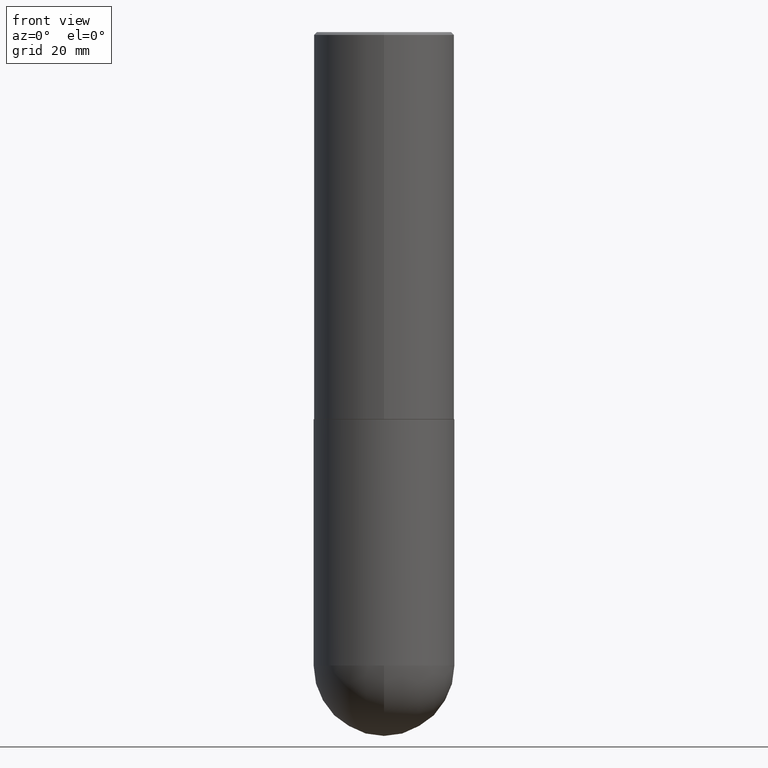
[diagram: clean part render]
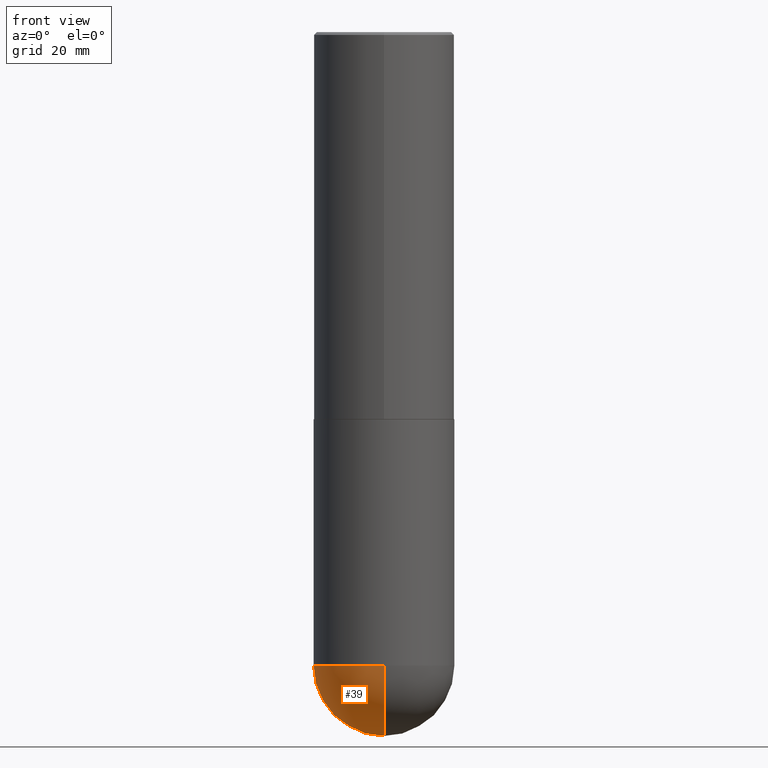
[diagram: same view with one face highlighted and labeled with its STEP entity id]
A machine part, front view. The second image highlights one B-rep face of the part: STEP entity #39.
In plain terms, the highlighted spherical surface has radius 12.7 mm.
Its self-contained STEP definition (entity closure, byte-faithful):
#7 = CARTESIAN_POINT ( 'NONE',  ( 1.067348984991922956E-28, -1.618584839293420562E-14, -4.500000000000000000 ) ) ;
#8 = SPHERICAL_SURFACE ( 'NONE', #31, 0.5000000000000002220 ) ;
#11 = EDGE_CURVE ( 'NONE', #402, #353, #230, .T. ) ;
#21 = CARTESIAN_POINT ( 'NONE',  ( 1.100460962783311244E-28, -1.571166602479415374E-14, -4.499999999999999112 ) ) ;
#29 = CARTESIAN_POINT ( 'NONE',  ( 1.067348984991922956E-28, -1.618584839293420562E-14, -4.500000000000000000 ) ) ;
#31 = AXIS2_PLACEMENT_3D ( 'NONE', #171, #266, #172 ) ;
#39 = ADVANCED_FACE ( 'NONE', ( #356 ), #8, .T. ) ;
#40 = CARTESIAN_POINT ( 'NONE',  ( 3.491481338843242218E-15, 0.4999999999999841238, -4.500000000000000888 ) ) ;
#54 = DIRECTION ( 'NONE',  ( -7.105427357601001859E-15, -1.000000000000000000, 0.000000000000000000 ) ) ;
#57 = CARTESIAN_POINT ( 'NONE',  ( -3.552713678800393250E-15, -0.5000000000000160982, -4.499999999999998224 ) ) ;
#71 = EDGE_CURVE ( 'NONE', #195, #148, #128, .T. ) ;
#73 = AXIS2_PLACEMENT_3D ( 'NONE', #21, #365, #108 ) ;
#80 = EDGE_CURVE ( 'NONE', #353, #195, #116, .T. ) ;
#108 = DIRECTION ( 'NONE',  ( 1.000000000000000000, -6.982962677686262766E-15, 0.000000000000000000 ) ) ;
#112 = DIRECTION ( 'NONE',  ( -2.445468806185136597E-29, 3.491481338843145583E-15, 1.000000000000000000 ) ) ;
#116 = CIRCLE ( 'NONE', #139, 0.5000000000000000000 ) ;
#128 = CIRCLE ( 'NONE', #73, 0.5000000000000000000 ) ;
#139 = AXIS2_PLACEMENT_3D ( 'NONE', #397, #112, #392 ) ;
#148 = VERTEX_POINT ( 'NONE', #57 ) ;
#157 = DIRECTION ( 'NONE',  ( 1.000000000000000000, -6.982962677686265922E-15, 4.883557194083112340E-29 ) ) ;
#171 = CARTESIAN_POINT ( 'NONE',  ( 1.067348984991922956E-28, -1.618584839293420562E-14, -4.500000000000000000 ) ) ;
#172 = DIRECTION ( 'NONE',  ( 6.982962677686265922E-15, 1.000000000000000000, -3.278217592397114284E-15 ) ) ;
#195 = VERTEX_POINT ( 'NONE', #336 ) ;
#222 = CIRCLE ( 'NONE', #238, 0.5000000000000002220 ) ;
#227 = CARTESIAN_POINT ( 'NONE',  ( 1.191760341024128201E-28, -1.790097289237709482E-14, -5.000000000000000000 ) ) ;
#230 = CIRCLE ( 'NONE', #307, 0.5000000000000002220 ) ;
#232 = ORIENTED_EDGE ( 'NONE', *, *, #71, .F. ) ;
#238 = AXIS2_PLACEMENT_3D ( 'NONE', #7, #375, #54 ) ;
#251 = ORIENTED_EDGE ( 'NONE', *, *, #292, .T. ) ;
#266 = DIRECTION ( 'NONE',  ( -1.000000000000000000, 6.982962677686265922E-15, -4.883557194083113462E-29 ) ) ;
#281 = DIRECTION ( 'NONE',  ( 6.982962677686266711E-15, 1.000000000000000000, 0.000000000000000000 ) ) ;
#292 = EDGE_CURVE ( 'NONE', #402, #148, #222, .T. ) ;
#307 = AXIS2_PLACEMENT_3D ( 'NONE', #29, #157, #281 ) ;
#322 = EDGE_LOOP ( 'NONE', ( #350, #251, #232, #340 ) ) ;
#336 = CARTESIAN_POINT ( 'NONE',  ( -0.5000000000000000000, -9.103906174505904815E-15, -4.499999999999999112 ) ) ;
#340 = ORIENTED_EDGE ( 'NONE', *, *, #80, .F. ) ;
#350 = ORIENTED_EDGE ( 'NONE', *, *, #11, .F. ) ;
#353 = VERTEX_POINT ( 'NONE', #40 ) ;
#356 = FACE_OUTER_BOUND ( 'NONE', #322, .T. ) ;
#365 = DIRECTION ( 'NONE',  ( -2.445468806185136597E-29, 3.491481338843145583E-15, 1.000000000000000000 ) ) ;
#375 = DIRECTION ( 'NONE',  ( -1.000000000000000000, 7.105427357601001070E-15, -4.926315508542082329E-29 ) ) ;
#392 = DIRECTION ( 'NONE',  ( 1.000000000000000000, -6.982962677686262766E-15, 0.000000000000000000 ) ) ;
#397 = CARTESIAN_POINT ( 'NONE',  ( 1.100460962783311244E-28, -1.571166602479415374E-14, -4.499999999999999112 ) ) ;
#402 = VERTEX_POINT ( 'NONE', #227 ) ;